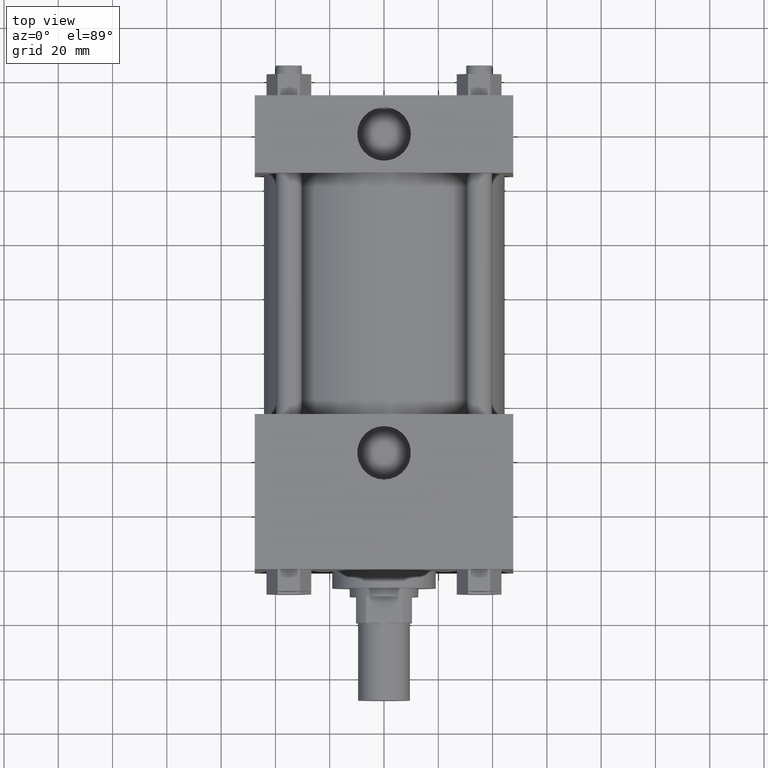
[diagram: clean part render]
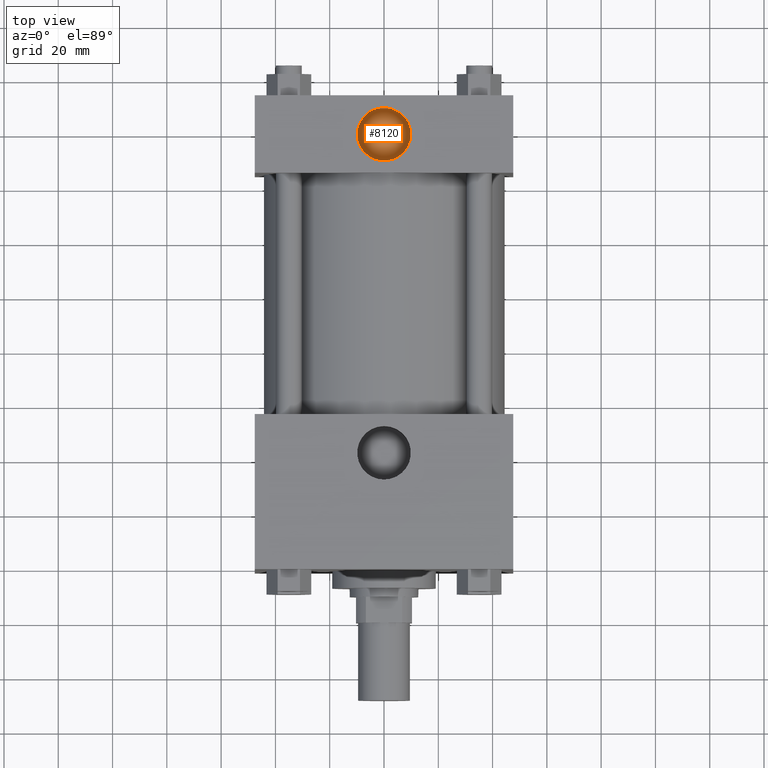
[diagram: same view with one face highlighted and labeled with its STEP entity id]
A machine part, top view. The second image highlights one B-rep face of the part: STEP entity #8120.
In plain terms, the highlighted planar face has unit normal (0, 0, -1).
Its self-contained STEP definition (entity closure, byte-faithful):
#4681=FACE_OUTER_BOUND('',#4682,.T.);
#4682=EDGE_LOOP('',(#4683));
#4683=ORIENTED_EDGE('',*,*,#4684,.T.);
#4684=EDGE_CURVE('',#4690,#4690,#4685,.T.);
#4685=CIRCLE('',#4686,9.885680000E+000);
#4686=AXIS2_PLACEMENT_3D('',#4687,#4688,#4689);
#4687=CARTESIAN_POINT('',(0.000000000E+000,1.793875000E+002,3.406140000E+001));
#4688=DIRECTION('',(0.0E+000,0.0E+000,1.0E+000));
#4689=DIRECTION('',(-1.0E+000,0.0E+000,0.0E+000));
#4690=VERTEX_POINT('',#4691);
#4691=CARTESIAN_POINT('',(9.885680000E+000,1.793875000E+002,3.406140000E+001));
#4692=PLANE('',#4693);
#4693=AXIS2_PLACEMENT_3D('',#4694,#4695,#4696);
#4694=CARTESIAN_POINT('',(0.000000000E+000,1.793875000E+002,3.406140000E+001));
#4695=DIRECTION('',(0.0E+000,0.0E+000,-1.0E+000));
#4696=DIRECTION('',(-1.0E+000,0.0E+000,0.0E+000));
#8120=ADVANCED_FACE('',(#4681),#4692,.F.);